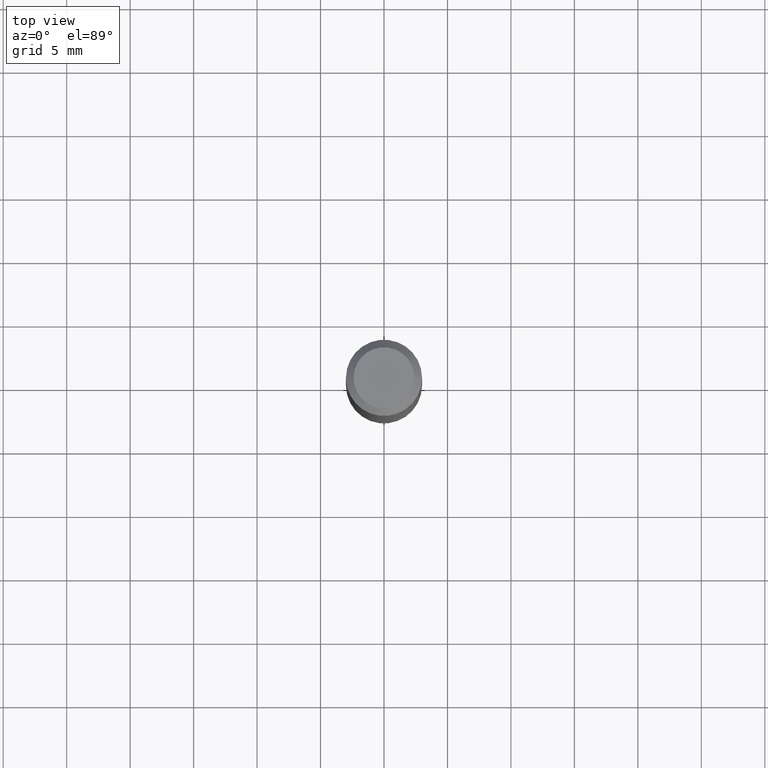
[diagram: clean part render]
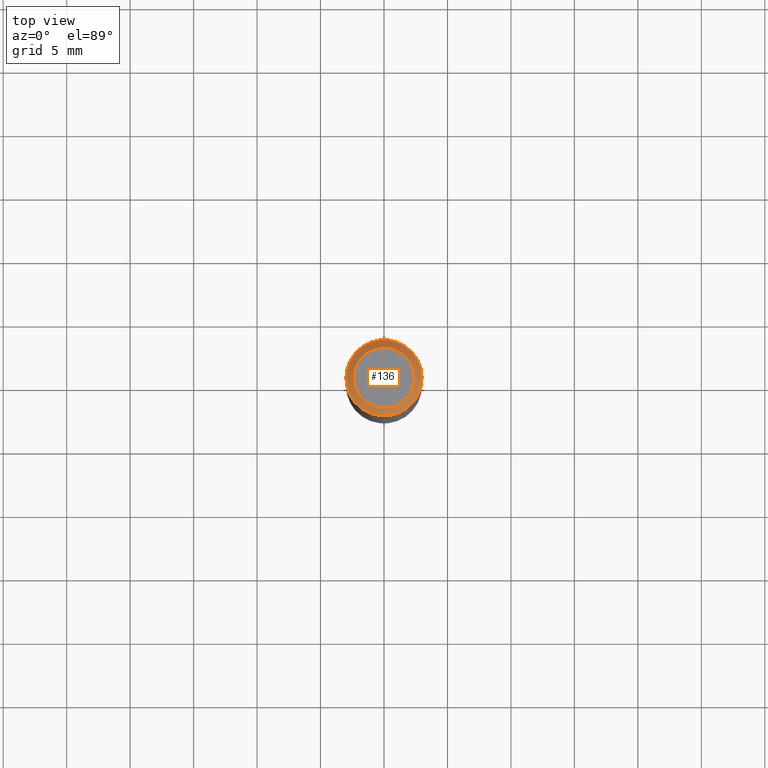
[diagram: same view with one face highlighted and labeled with its STEP entity id]
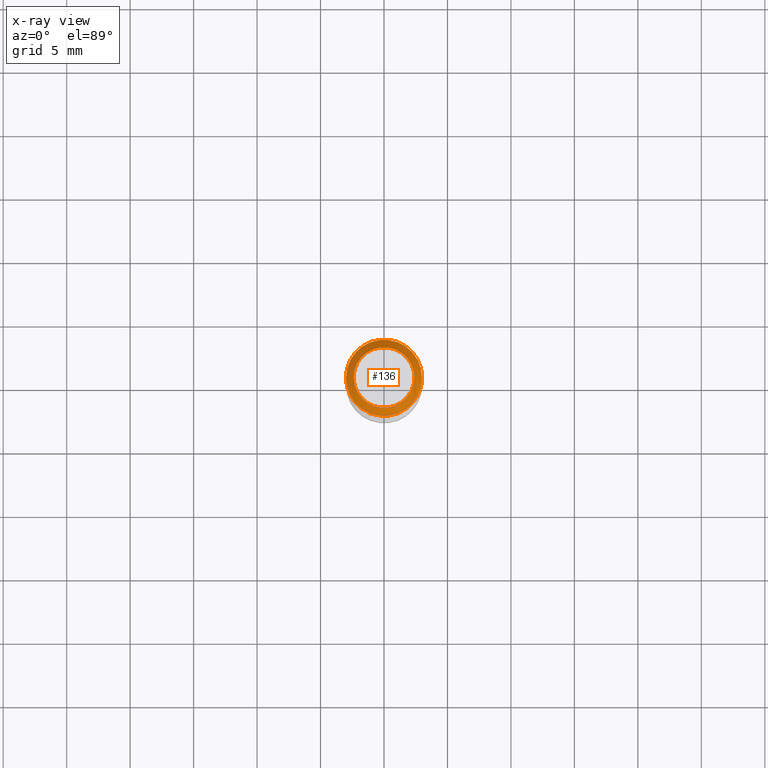
[diagram: x-ray of the same camera — body ghosted, the highlighted face saturated]
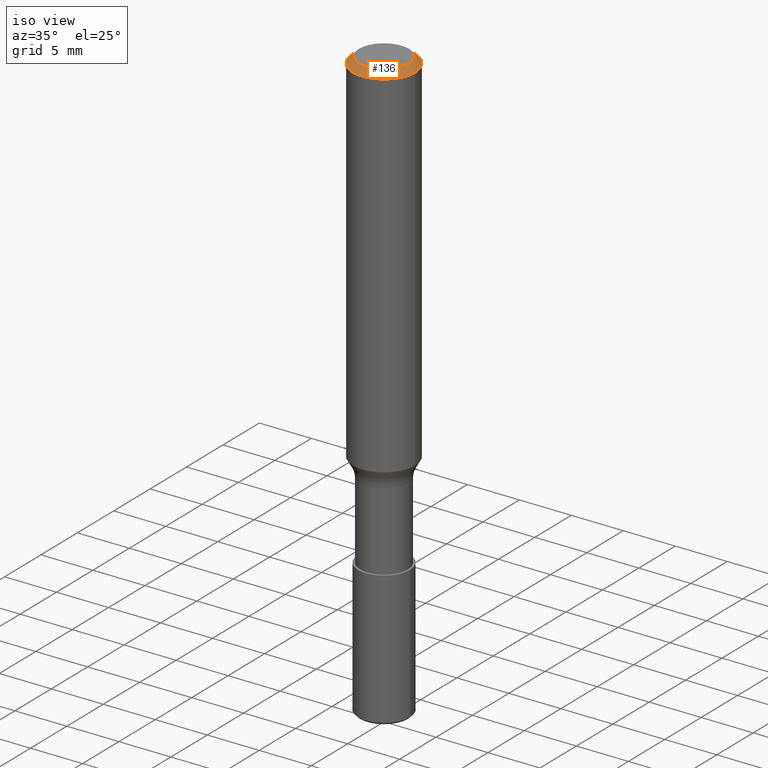
[diagram: same view with one face highlighted and labeled with its STEP entity id]
A machine part, top view. The second image highlights one B-rep face of the part: STEP entity #136.
The next image is the same camera in x-ray: the body ghosted, the highlighted face saturated — about 0% of this face is hidden behind the body in this view.
A second angle (iso view) of the same face is appended — the face is thin or edge-on in the first view.
In plain terms, the highlighted conical surface has half-angle 45 deg.
Its self-contained STEP definition (entity closure, byte-faithful):
#5 = EDGE_LOOP ( 'NONE', ( #222 ) ) ;
#16 = VERTEX_POINT ( 'NONE', #64 ) ;
#27 = CARTESIAN_POINT ( 'NONE',  ( 2.399999999999998135, 0.0000000000000000000, -1.675911042644702748E-14 ) ) ;
#57 = ORIENTED_EDGE ( 'NONE', *, *, #197, .F. ) ;
#64 = CARTESIAN_POINT ( 'NONE',  ( 2.999999999999995559, 0.0000000000000000000, -0.6000000000000241807 ) ) ;
#69 = DIRECTION ( 'NONE',  ( -1.000000000000000000, 0.0000000000000000000, 6.982962677686266711E-15 ) ) ;
#77 = DIRECTION ( 'NONE',  ( 1.000000000000000000, 0.0000000000000000000, -6.982962677686266711E-15 ) ) ;
#98 = CONICAL_SURFACE ( 'NONE', #279, 2.399999999999998135, 0.7853981633974472798 ) ;
#116 = EDGE_LOOP ( 'NONE', ( #57 ) ) ;
#121 = AXIS2_PLACEMENT_3D ( 'NONE', #265, #268, #77 ) ;
#126 = CIRCLE ( 'NONE', #135, 3.000000000000000000 ) ;
#130 = DIRECTION ( 'NONE',  ( 6.982962677686266711E-15, 0.0000000000000000000, 1.000000000000000000 ) ) ;
#135 = AXIS2_PLACEMENT_3D ( 'NONE', #253, #130, #173 ) ;
#136 = ADVANCED_FACE ( 'NONE', ( #223, #232 ), #98, .T. ) ;
#148 = DIRECTION ( 'NONE',  ( -6.982962677686266711E-15, 0.0000000000000000000, -1.000000000000000000 ) ) ;
#151 = VERTEX_POINT ( 'NONE', #27 ) ;
#154 = CARTESIAN_POINT ( 'NONE',  ( 0.0000000000000000000, 0.0000000000000000000, 0.0000000000000000000 ) ) ;
#166 = CIRCLE ( 'NONE', #121, 2.399999999999998135 ) ;
#173 = DIRECTION ( 'NONE',  ( 1.000000000000000000, 0.0000000000000000000, -6.975033976323412122E-15 ) ) ;
#197 = EDGE_CURVE ( 'NONE', #151, #151, #166, .T. ) ;
#222 = ORIENTED_EDGE ( 'NONE', *, *, #235, .T. ) ;
#223 = FACE_OUTER_BOUND ( 'NONE', #5, .T. ) ;
#232 = FACE_BOUND ( 'NONE', #116, .T. ) ;
#235 = EDGE_CURVE ( 'NONE', #16, #16, #126, .T. ) ;
#253 = CARTESIAN_POINT ( 'NONE',  ( -4.189777606611783692E-15, 0.0000000000000000000, -0.6000000000000033085 ) ) ;
#265 = CARTESIAN_POINT ( 'NONE',  ( 0.0000000000000000000, 0.0000000000000000000, 0.0000000000000000000 ) ) ;
#268 = DIRECTION ( 'NONE',  ( 6.982962677686266711E-15, 0.0000000000000000000, 1.000000000000000000 ) ) ;
#279 = AXIS2_PLACEMENT_3D ( 'NONE', #154, #148, #69 ) ;